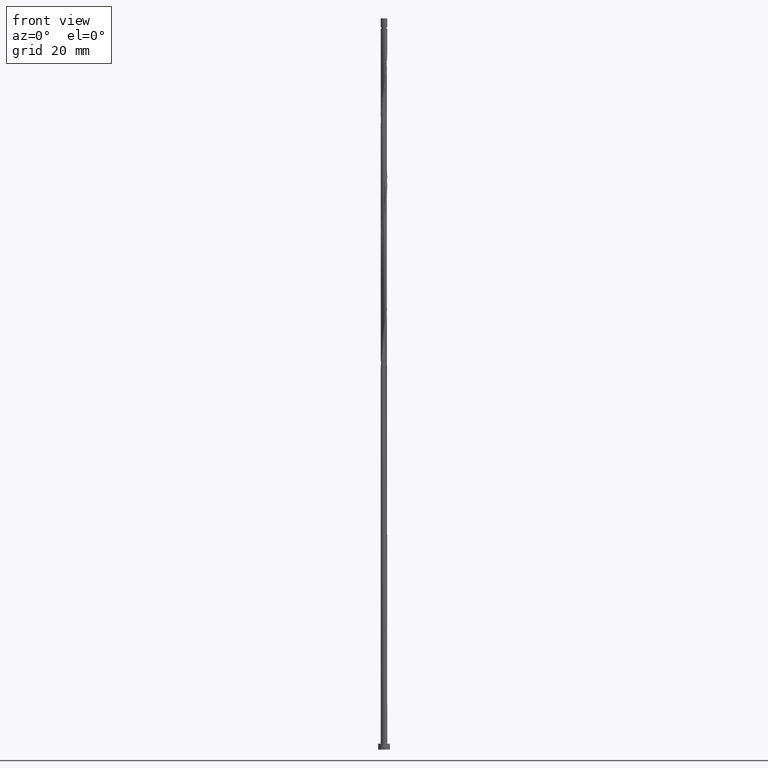
[diagram: clean part render]
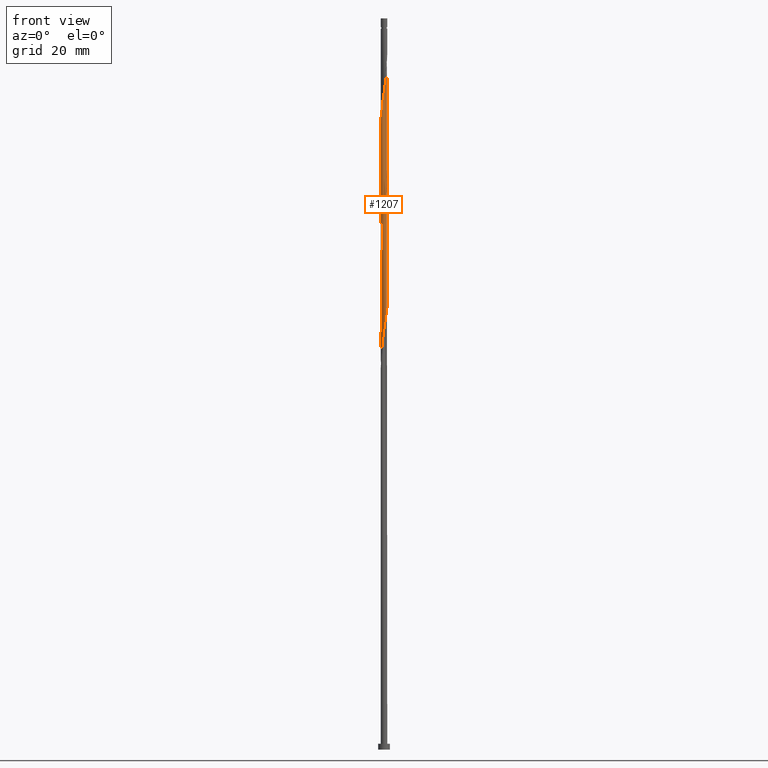
[diagram: same view with one face highlighted and labeled with its STEP entity id]
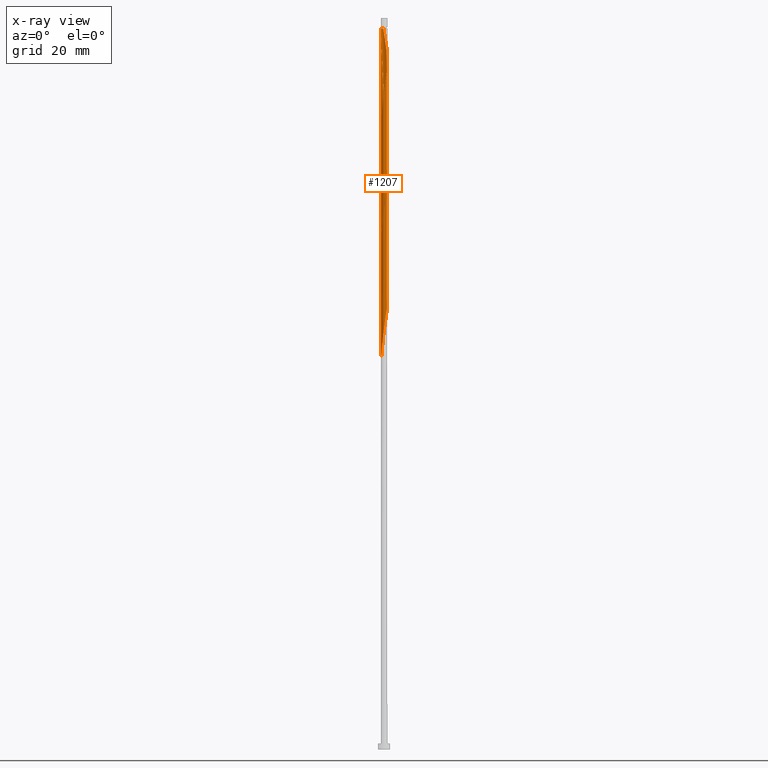
[diagram: x-ray of the same camera — body ghosted, the highlighted face saturated]
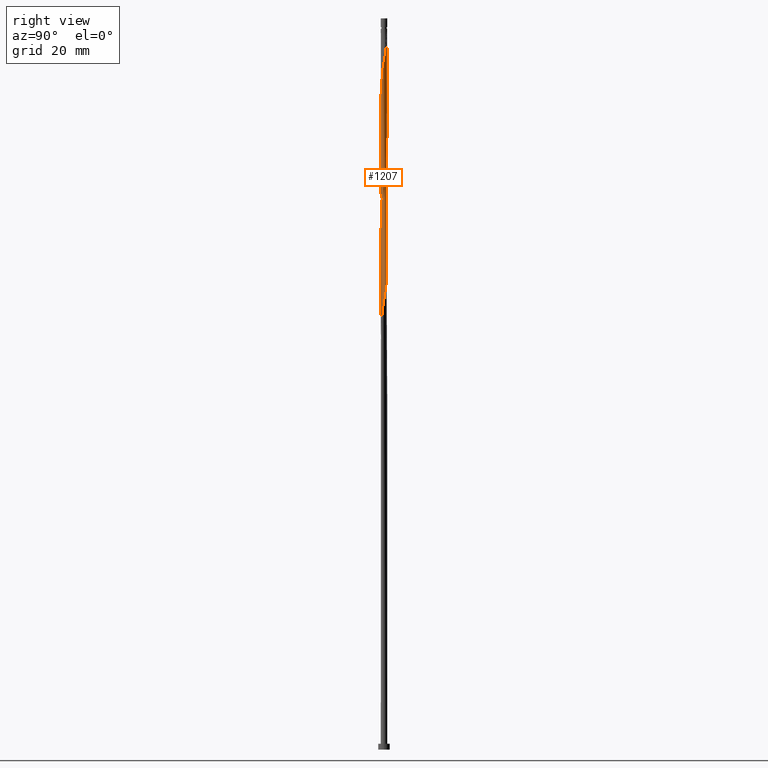
[diagram: same view with one face highlighted and labeled with its STEP entity id]
A machine part, front view. The second image highlights one B-rep face of the part: STEP entity #1207.
The next image is the same camera in x-ray: the body ghosted, the highlighted face saturated — about 0% of this face is hidden behind the body in this view.
A second angle (right view) of the same face is appended — the face is thin or edge-on in the first view.
In plain terms, the highlighted cylindrical surface (bore or boss wall) has radius 1.1 mm, axis along (-0, -0, -1).
Its self-contained STEP definition (entity closure, byte-faithful):
#2 = CARTESIAN_POINT ( 'NONE',  ( 0.9590428054949432513, 0.5550462033200851408, 199.2324364001611059 ) ) ;
#8 = CARTESIAN_POINT ( 'NONE',  ( 1.085917561661207564, -0.2205049656298699867, 194.4247440924687851 ) ) ;
#12 = CARTESIAN_POINT ( 'NONE',  ( -0.8590584812566418593, 0.6998985043366532377, 212.0529492206739519 ) ) ;
#18 = CARTESIAN_POINT ( 'NONE',  ( -1.085917561661207564, 0.2205049656298698479, 173.5914107591354991 ) ) ;
#29 = CARTESIAN_POINT ( 'NONE',  ( 1.001592478565782374, -0.4739745747106116069, 151.1555133232380115 ) ) ;
#32 = EDGE_CURVE ( 'NONE', #744, #1502, #282, .T. ) ;
#34 = CARTESIAN_POINT ( 'NONE',  ( -1.100000000000001865, 0.04375044337044767945, 216.3218283860610995 ) ) ;
#38 = CARTESIAN_POINT ( 'NONE',  ( 0.7628288044120180578, -0.7925226906274263072, 190.4183338360585935 ) ) ;
#48 = CARTESIAN_POINT ( 'NONE',  ( 0.9590428054949432513, 0.5550462033200851408, 157.5657697334944203 ) ) ;
#53 = CARTESIAN_POINT ( 'NONE',  ( -0.7983435136988058511, -0.7684315354842592427, 138.3350005027251939 ) ) ;
#62 = CARTESIAN_POINT ( 'NONE',  ( -0.9590428054949428072, -0.5550462033200855849, 136.7324364001611343 ) ) ;
#98 = CARTESIAN_POINT ( 'NONE',  ( 0.7983435136988061842, -0.7684315354842599088, 229.6811543488791472 ) ) ;
#115 = CARTESIAN_POINT ( 'NONE',  ( -1.100000000000001865, -6.206714491313604290E-16, 213.9301555499103245 ) ) ;
#130 = CARTESIAN_POINT ( 'NONE',  ( -1.099999999999981881, 0.000000000000000000, 246.5080774258021563 ) ) ;
#136 = CIRCLE ( 'NONE', #615, 1.099999999999981881 ) ;
#140 = CARTESIAN_POINT ( 'NONE',  ( 0.4705187664120762392, 0.9942897417021165918, 161.5721799899047255 ) ) ;
#151 = CARTESIAN_POINT ( 'NONE',  ( 1.107133063222617508, 0.04577959055034153124, 154.3606415283662727 ) ) ;
#159 = CARTESIAN_POINT ( 'NONE',  ( 0.6947954562229515796, 0.8527949777126648812, 159.9696158873406659 ) ) ;
#163 = CARTESIAN_POINT ( 'NONE',  ( 1.064006015414472817, 0.3094036033298083188, 197.6298722975969895 ) ) ;
#168 = AXIS2_PLACEMENT_3D ( 'NONE', #243, #929, #1056 ) ;
#170 = CARTESIAN_POINT ( 'NONE',  ( 0.3497901340770557255, 1.051421063463162442, 162.3734620411867411 ) ) ;
#176 = EDGE_CURVE ( 'NONE', #185, #314, #136, .T. ) ;
#180 = CARTESIAN_POINT ( 'NONE',  ( -0.6947954562229511355, -0.8527949777126652142, 180.8029492206740088 ) ) ;
#185 = VERTEX_POINT ( 'NONE', #130 ) ;
#226 = CARTESIAN_POINT ( 'NONE',  ( -1.011524410454707645, -0.4322249033249473404, 135.9311543488791187 ) ) ;
#231 = CARTESIAN_POINT ( 'NONE',  ( 1.085917561661207342, 0.2205049656298695704, 236.0914107591355275 ) ) ;
#238 = CARTESIAN_POINT ( 'NONE',  ( -1.100000000000001865, -0.04375044337044946274, 214.1943264655432984 ) ) ;
#243 = CARTESIAN_POINT ( 'NONE',  ( 0.000000000000000000, 0.000000000000000000, 250.0000000000000000 ) ) ;
#246 = CARTESIAN_POINT ( 'NONE',  ( 0.9303254799112121720, 0.5869365395236321170, 238.4952569129816595 ) ) ;
#253 = VECTOR ( 'NONE', #806, 1000.000000000000000 ) ;
#263 = CARTESIAN_POINT ( 'NONE',  ( 1.107133063222617286, -0.04577959055034197533, 234.4888466565714111 ) ) ;
#272 = CARTESIAN_POINT ( 'NONE',  ( -0.7628288044120180578, 0.7925226906274263072, 211.2516671693919079 ) ) ;
#274 = DIRECTION ( 'NONE',  ( -0.000000000000000000, -0.000000000000000000, -1.000000000000000000 ) ) ;
#282 = LINE ( 'NONE', #1335, #253 ) ;
#285 = CARTESIAN_POINT ( 'NONE',  ( 1.100000000000000089, 1.347111479062088503E-16, 246.5080774258022416 ) ) ;
#287 = CARTESIAN_POINT ( 'NONE',  ( -0.5912473987470958647, -0.9371584199410710747, 181.6042312719560243 ) ) ;
#291 = CARTESIAN_POINT ( 'NONE',  ( -0.4353994555731700578, 1.018953730391247703, 208.8478210155457191 ) ) ;
#295 = CARTESIAN_POINT ( 'NONE',  ( 1.096525312441912536, -0.08736268753976463020, 153.5593594770842003 ) ) ;
#299 = CARTESIAN_POINT ( 'NONE',  ( -0.6665991275673939231, 0.8851468769181994878, 210.4503851181098355 ) ) ;
#302 = CARTESIAN_POINT ( 'NONE',  ( 0.04544580579189956560, -1.099060816668454121, 185.6106415283663011 ) ) ;
#305 = CARTESIAN_POINT ( 'NONE',  ( -0.1788959498336608334, 1.093542696800067882, 207.2452569129816027 ) ) ;
#310 = CARTESIAN_POINT ( 'NONE',  ( 1.043755020113495080, -0.3472397701702413242, 151.9567953745201692 ) ) ;
#314 = VERTEX_POINT ( 'NONE', #1388 ) ;
#331 = CARTESIAN_POINT ( 'NONE',  ( 0.6665991275673935901, -0.8851468769181997098, 147.9503851181098071 ) ) ;
#341 = CARTESIAN_POINT ( 'NONE',  ( -0.6947954562229511355, -0.8527949777126652142, 139.1362825540072947 ) ) ;
#350 = CARTESIAN_POINT ( 'NONE',  ( -1.085569539318544718, -0.1775915969400753414, 134.3285902463150023 ) ) ;
#370 = CARTESIAN_POINT ( 'NONE',  ( -0.8590584812566420814, -0.6998985043366532377, 218.4632056309303891 ) ) ;
#378 = CARTESIAN_POINT ( 'NONE',  ( -1.085917561661207342, -0.2205049656298697092, 215.2580774258021847 ) ) ;
#388 = CARTESIAN_POINT ( 'NONE',  ( 0.9590428054949423631, -0.5550462033200865841, 231.2837184514432352 ) ) ;
#396 = CARTESIAN_POINT ( 'NONE',  ( 0.08800433824986102216, 1.104578936536840139, 205.6426928104175431 ) ) ;
#408 = CARTESIAN_POINT ( 'NONE',  ( 1.096525312441912536, -0.08736268753976463020, 195.2260261437509143 ) ) ;
#419 = CARTESIAN_POINT ( 'NONE',  ( -0.3071477027034154594, 1.056248213595657903, 166.3798722975970463 ) ) ;
#421 = VERTEX_POINT ( 'NONE', #1668 ) ;
#427 = CARTESIAN_POINT ( 'NONE',  ( 1.011524410454707867, 0.4322249033249472294, 156.7644876822124047 ) ) ;
#431 = CARTESIAN_POINT ( 'NONE',  ( -0.3071477027034154594, 1.056248213595657903, 208.0465389642637319 ) ) ;
#436 = CARTESIAN_POINT ( 'NONE',  ( 0.9303254799112121720, -0.5869365395236327831, 192.0208979386226815 ) ) ;
#444 = CARTESIAN_POINT ( 'NONE',  ( -0.8786931595968745512, -0.6617388694021724138, 179.2003851181098639 ) ) ;
#447 =( BOUNDED_CURVE ( )  B_SPLINE_CURVE ( 2, ( #680, #1199, #408, #8, #581, #949, #436, #1598, #38, #1359, #1467, #1083, #966, #1478, #302, #830, #1224, #536, #569, #287, #180, #1189, #444, #1217, #976, #1504, #708, #1330, #796, #18, #1320, #689, #840, #1064, #546, #701, #1074, #1093, #419, #1340, #1620, #1350, #1610, #170, #140, #1206, #159, #938, #1630, #48, #427, #1101, #1637, #151, #295, #1497, #310, #29, #672, #820, #558, #331, #856, #1231, #1125, #1672, #614, #1136, #1392, #1242, #1109, #1374, #341, #53, #866, #62, #226, #1679, #350, #597, #874 ),
 .UNSPECIFIED., .F., .T. ) 
 B_SPLINE_CURVE_WITH_KNOTS ( ( 3, 2, 2, 2, 2, 2, 2, 2, 2, 2, 2, 2, 2, 2, 2, 2, 2, 2, 2, 2, 2, 2, 2, 2, 2, 2, 2, 2, 2, 2, 2, 2, 2, 2, 2, 2, 2, 2, 2, 2, 3 ),
 ( 0.5545271625973833274, 0.5576923076923077094, 0.5673076923076922906, 0.5769230769230768718, 0.5865384615384615641, 0.5961538461538461453, 0.6057692307692307265, 0.6153846153846154188, 0.6250000000000000000, 0.6346153846153845812, 0.6442307692307692735, 0.6538461538461538547, 0.6634615384615384359, 0.6730769230769231282, 0.6826923076923077094, 0.6923076923076922906, 0.7019230769230768718, 0.7115384615384615641, 0.7211538461538461453, 0.7307692307692307265, 0.7403846153846154188, 0.7500000000000000000, 0.7596153846153845812, 0.7692307692307692735, 0.7788461538461538547, 0.7884615384615384359, 0.7980769230769231282, 0.8076923076923077094, 0.8173076923076922906, 0.8269230769230768718, 0.8365384615384615641, 0.8461538461538461453, 0.8557692307692307265, 0.8653846153846154188, 0.8750000000000000000, 0.8846153846153845812, 0.8942307692307692735, 0.9038461538461538547, 0.9134615384615384359, 0.9230769230769231282, 0.9295271625973834384 ),
 .UNSPECIFIED. ) 
 CURVE ( )  GEOMETRIC_REPRESENTATION_ITEM ( )  RATIONAL_B_SPLINE_CURVE ( ( 0.9061636035683380275, 0.9069090390691266768, 0.9090909090909833346, 0.9024626128164864314, 0.9090909090909833346, 0.9024626128164864314, 0.9090909090909833346, 0.9024626128164864314, 0.9090909090909833346, 0.9024626128164864314, 0.9090909090909833346, 0.9024626128164864314, 0.9090909090909833346, 0.9024626128164864314, 0.9090909090909833346, 0.9024626128164864314, 0.9090909090909833346, 0.9024626128164864314, 0.9090909090909833346, 0.9024626128164864314, 0.9090909090909833346, 0.9024626128164864314, 0.9090909090909833346, 0.9024626128164864314, 0.9090909090909833346, 0.9024626128164864314, 0.9090909090909833346, 0.9024626128164864314, 0.9090909090909833346, 0.9024626128164864314, 0.9090909090909833346, 0.9024626128164864314, 0.9090909090909833346, 0.9024626128164864314, 0.9090909090909833346, 0.9024626128164864314, 0.9090909090909833346, 0.9024626128164864314, 0.9090909090909833346, 0.9024626128164864314, 0.9090909090909833346, 0.9024626128164864314, 0.9090909090909833346, 0.9024626128164864314, 0.9090909090909833346, 0.9024626128164864314, 0.9090909090909833346, 0.9024626128164864314, 0.9090909090909833346, 0.9024626128164864314, 0.9090909090909833346, 0.9024626128164864314, 0.9090909090909833346, 0.9024626128164864314, 0.9090909090909833346, 0.9024626128164864314, 0.9090909090909833346, 0.9024626128164864314, 0.9090909090909833346, 0.9024626128164864314, 0.9090909090909833346, 0.9024626128164864314, 0.9090909090909833346, 0.9024626128164864314, 0.9090909090909833346, 0.9024626128164864314, 0.9090909090909833346, 0.9024626128164864314, 0.9090909090909833346, 0.9024626128164864314, 0.9090909090909833346, 0.9024626128164864314, 0.9090909090909833346, 0.9024626128164864314, 0.9090909090909833346, 0.9024626128164864314, 0.9090909090909833346, 0.9024626128164864314, 0.9090909090909833346, 0.9046444828383430892, 0.9061636035683381385 ) ) 
 REPRESENTATION_ITEM ( '' )  );
#465 = ORIENTED_EDGE ( 'NONE', *, *, #486, .T. ) ;
#474 = EDGE_CURVE ( 'NONE', #421, #314, #1232, .T. ) ;
#486 = EDGE_CURVE ( 'NONE', #421, #1525, #540, .T. ) ;
#490 = CARTESIAN_POINT ( 'NONE',  ( -1.043755020113495080, -0.3472397701702404360, 216.0593594770842003 ) ) ;
#504 = CARTESIAN_POINT ( 'NONE',  ( -1.096525312441912536, -0.08736268753976370038, 214.4567953745201123 ) ) ;
#512 = CARTESIAN_POINT ( 'NONE',  ( -0.04544580579190031500, -1.099060816668453677, 224.0721799899047255 ) ) ;
#520 = CARTESIAN_POINT ( 'NONE',  ( -1.001592478565782374, 0.4739745747106117735, 213.6555133232380399 ) ) ;
#530 = CARTESIAN_POINT ( 'NONE',  ( 0.6947954562229515796, 0.8527949777126648812, 201.6362825540072947 ) ) ;
#536 = CARTESIAN_POINT ( 'NONE',  ( -0.3497901340770555589, -1.051421063463162442, 183.2067953745201123 ) ) ;
#540 = LINE ( 'NONE', #551, #1692 ) ;
#546 = CARTESIAN_POINT ( 'NONE',  ( -0.7628288044120180578, 0.7925226906274263072, 169.5850005027252507 ) ) ;
#551 = CARTESIAN_POINT ( 'NONE',  ( -1.100000000000000089, 0.000000000000000000, 250.0000000000000000 ) ) ;
#558 = CARTESIAN_POINT ( 'NONE',  ( 0.7628288044120180578, -0.7925226906274263072, 148.7516671693919363 ) ) ;
#562 = CARTESIAN_POINT ( 'NONE',  ( -0.08800433824986045317, 1.104578936536840361, 245.7067953745201407 ) ) ;
#569 = CARTESIAN_POINT ( 'NONE',  ( -0.4705187664120757951, -0.9942897417021170359, 182.4055133232380967 ) ) ;
#581 = CARTESIAN_POINT ( 'NONE',  ( 1.043755020113495080, -0.3472397701702413242, 193.6234620411867979 ) ) ;
#594 = VERTEX_POINT ( 'NONE', #1492 ) ;
#597 = CARTESIAN_POINT ( 'NONE',  ( -1.100000000000002309, -0.08938208239074729722, 133.7923667057090142 ) ) ;
#603 = CARTESIAN_POINT ( 'NONE',  ( -1.100000000000002087, -1.200214067296184068E-15, 133.2526659683607306 ) ) ;
#614 = CARTESIAN_POINT ( 'NONE',  ( 0.04544580579189956560, -1.099060816668454121, 143.9439748616996440 ) ) ;
#615 = AXIS2_PLACEMENT_3D ( 'NONE', #1451, #274, #1473 ) ;
#627 = EDGE_CURVE ( 'NONE', #594, #1502, #747, .T. ) ;
#632 = CARTESIAN_POINT ( 'NONE',  ( 0.8786931595968742181, -0.6617388694021730799, 230.4824364001611343 ) ) ;
#648 = CARTESIAN_POINT ( 'NONE',  ( -0.4353994555731702243, -1.018953730391247703, 221.6683338360586504 ) ) ;
#656 = CARTESIAN_POINT ( 'NONE',  ( 1.100000000000001865, 0.08938208239074856010, 196.2923667057090427 ) ) ;
#672 = CARTESIAN_POINT ( 'NONE',  ( 0.9303254799112121720, -0.5869365395236327831, 150.3542312719560528 ) ) ;
#676 = CARTESIAN_POINT ( 'NONE',  ( 0.8786931595968748843, 0.6617388694021724138, 200.0337184514431783 ) ) ;
#680 = CARTESIAN_POINT ( 'NONE',  ( 1.100000000000001865, 7.328409881310033418E-16, 195.7526659683607591 ) ) ;
#685 = CARTESIAN_POINT ( 'NONE',  ( -1.100000000000002309, -6.879731725311458414E-16, 216.5859993016940734 ) ) ;
#689 = CARTESIAN_POINT ( 'NONE',  ( -1.001592478565782374, 0.4739745747106117735, 171.9888466565714111 ) ) ;
#695 = CARTESIAN_POINT ( 'NONE',  ( 0.4353994555731702243, 1.018953730391247703, 242.5016671693919363 ) ) ;
#701 = CARTESIAN_POINT ( 'NONE',  ( -0.6665991275673939231, 0.8851468769181994878, 168.7837184514431783 ) ) ;
#708 = CARTESIAN_POINT ( 'NONE',  ( -1.085569539318544718, -0.1775915969400753414, 175.9952569129816595 ) ) ;
#744 = VERTEX_POINT ( 'NONE', #285 ) ;
#747 =( BOUNDED_CURVE ( )  B_SPLINE_CURVE ( 2, ( #685, #34, #954, #1060, #1483, #520, #1068, #12, #272, #299, #1212, #291, #431, #305, #1185, #396, #824, #942, #1603, #1344, #530, #932, #676, #2, #1585, #163, #835, #656, #1592 ),
 .UNSPECIFIED., .F., .T. ) 
 B_SPLINE_CURVE_WITH_KNOTS ( ( 3, 2, 2, 2, 2, 2, 2, 2, 2, 2, 2, 2, 2, 2, 3 ),
 ( 0.4295271625973833829, 0.4326923076923077094, 0.4423076923076922906, 0.4519230769230769273, 0.4615384615384615641, 0.4711538461538461453, 0.4807692307692307820, 0.4903846153846153633, 0.5000000000000000000, 0.5096153846153845812, 0.5192307692307692735, 0.5288461538461538547, 0.5384615384615384359, 0.5480769230769231282, 0.5545271625973833274 ),
 .UNSPECIFIED. ) 
 CURVE ( )  GEOMETRIC_REPRESENTATION_ITEM ( )  RATIONAL_B_SPLINE_CURVE ( ( 0.9061636035683380275, 0.9069090390691266768, 0.9090909090909833346, 0.9024626128164864314, 0.9090909090909833346, 0.9024626128164864314, 0.9090909090909833346, 0.9024626128164864314, 0.9090909090909833346, 0.9024626128164864314, 0.9090909090909833346, 0.9024626128164864314, 0.9090909090909833346, 0.9024626128164864314, 0.9090909090909833346, 0.9024626128164864314, 0.9090909090909833346, 0.9024626128164864314, 0.9090909090909833346, 0.9024626128164864314, 0.9090909090909833346, 0.9024626128164864314, 0.9090909090909833346, 0.9024626128164864314, 0.9090909090909833346, 0.9024626128164864314, 0.9090909090909833346, 0.9046444828383430892, 0.9061636035683380275 ) ) 
 REPRESENTATION_ITEM ( '' )  );
#760 = CARTESIAN_POINT ( 'NONE',  ( -1.001592478565782596, -0.4739745747106117180, 216.8606415283663011 ) ) ;
#768 = CARTESIAN_POINT ( 'NONE',  ( 0.8590584812566425255, 0.6998985043366526826, 239.2965389642637319 ) ) ;
#796 = CARTESIAN_POINT ( 'NONE',  ( -1.096525312441912536, 0.08736268753976401957, 174.3926928104175431 ) ) ;
#799 = VECTOR ( 'NONE', #1488, 1000.000000000000000 ) ;
#806 = DIRECTION ( 'NONE',  ( -0.000000000000000000, -0.000000000000000000, -1.000000000000000000 ) ) ;
#815 = DIRECTION ( 'NONE',  ( -0.000000000000000000, -0.000000000000000000, -1.000000000000000000 ) ) ;
#820 = CARTESIAN_POINT ( 'NONE',  ( 0.8590584812566413042, -0.6998985043366535708, 149.5529492206739803 ) ) ;
#824 = CARTESIAN_POINT ( 'NONE',  ( 0.2188972361634583808, 1.078000000000001624, 204.8414107591354991 ) ) ;
#826 = ORIENTED_EDGE ( 'NONE', *, *, #627, .F. ) ;
#830 = CARTESIAN_POINT ( 'NONE',  ( -0.08800433824986128584, -1.104578936536840139, 184.8093594770842003 ) ) ;
#835 = CARTESIAN_POINT ( 'NONE',  ( 1.085569539318544718, 0.1775915969400754524, 196.8285902463150023 ) ) ;
#840 = CARTESIAN_POINT ( 'NONE',  ( -0.9303254799112121720, 0.5869365395236327831, 171.1875646052893387 ) ) ;
#856 = CARTESIAN_POINT ( 'NONE',  ( 0.5509992915702818239, -0.9520503036547237619, 147.1491030668278484 ) ) ;
#866 = CARTESIAN_POINT ( 'NONE',  ( -0.8786931595968745512, -0.6617388694021724138, 137.5337184514432067 ) ) ;
#874 = CARTESIAN_POINT ( 'NONE',  ( -1.100000000000002087, -1.200214067296184068E-15, 133.2526659683607306 ) ) ;
#886 = CARTESIAN_POINT ( 'NONE',  ( -0.6665991275673944783, -0.8851468769181991547, 220.0657697334944487 ) ) ;
#899 = CARTESIAN_POINT ( 'NONE',  ( 1.085569539318544718, -0.1775915969400758132, 233.6875646052893387 ) ) ;
#906 = CARTESIAN_POINT ( 'NONE',  ( -0.9303254799112121720, -0.5869365395236321170, 217.6619235796483167 ) ) ;
#916 = CARTESIAN_POINT ( 'NONE',  ( 1.011524410454707423, -0.4322249033249475070, 232.0850005027252223 ) ) ;
#929 = DIRECTION ( 'NONE',  ( -0.000000000000000000, -0.000000000000000000, -1.000000000000000000 ) ) ;
#932 = CARTESIAN_POINT ( 'NONE',  ( 0.7983435136988060732, 0.7684315354842592427, 200.8350005027252223 ) ) ;
#938 = CARTESIAN_POINT ( 'NONE',  ( 0.7983435136988060732, 0.7684315354842592427, 159.1683338360585651 ) ) ;
#942 = CARTESIAN_POINT ( 'NONE',  ( 0.3497901340770557255, 1.051421063463162442, 204.0401287078534267 ) ) ;
#949 = CARTESIAN_POINT ( 'NONE',  ( 1.001592478565782374, -0.4739745747106116069, 192.8221799899046971 ) ) ;
#954 = CARTESIAN_POINT ( 'NONE',  ( -1.096525312441912536, 0.08736268753976401957, 216.0593594770842287 ) ) ;
#957 = CARTESIAN_POINT ( 'NONE',  ( -1.100000000000000089, 0.000000000000000000, 250.0000000000000000 ) ) ;
#966 = CARTESIAN_POINT ( 'NONE',  ( 0.3071477027034154594, -1.056248213595657903, 187.2132056309303891 ) ) ;
#976 = CARTESIAN_POINT ( 'NONE',  ( -1.011524410454707645, -0.4322249033249473404, 177.5978210155458044 ) ) ;
#1013 = CARTESIAN_POINT ( 'NONE',  ( -0.1788959498336612219, -1.093542696800067882, 223.2708979386226815 ) ) ;
#1041 = CARTESIAN_POINT ( 'NONE',  ( 0.3497901340770548373, -1.051421063463162664, 226.4760261437509428 ) ) ;
#1056 = DIRECTION ( 'NONE',  ( -1.000000000000000000, 0.000000000000000000, 0.000000000000000000 ) ) ;
#1058 = ORIENTED_EDGE ( 'NONE', *, *, #1260, .F. ) ;
#1060 = CARTESIAN_POINT ( 'NONE',  ( -1.085917561661207564, 0.2205049656298698479, 215.2580774258021563 ) ) ;
#1064 = CARTESIAN_POINT ( 'NONE',  ( -0.8590584812566418593, 0.6998985043366532377, 170.3862825540072663 ) ) ;
#1068 = CARTESIAN_POINT ( 'NONE',  ( -0.9303254799112121720, 0.5869365395236327831, 212.8542312719560243 ) ) ;
#1074 = CARTESIAN_POINT ( 'NONE',  ( -0.5509992915702819349, 0.9520503036547237619, 167.9824364001611343 ) ) ;
#1083 = CARTESIAN_POINT ( 'NONE',  ( 0.4353994555731698912, -1.018953730391247925, 188.0144876822124047 ) ) ;
#1088 = CARTESIAN_POINT ( 'NONE',  ( 0.1788959498336613052, 1.093542696800067882, 244.1042312719560528 ) ) ;
#1093 = CARTESIAN_POINT ( 'NONE',  ( -0.4353994555731700578, 1.018953730391247703, 167.1811543488790335 ) ) ;
#1101 = CARTESIAN_POINT ( 'NONE',  ( 1.064006015414472817, 0.3094036033298083188, 155.9632056309303607 ) ) ;
#1109 = CARTESIAN_POINT ( 'NONE',  ( -0.4705187664120757951, -0.9942897417021170359, 140.7388466565713827 ) ) ;
#1125 = CARTESIAN_POINT ( 'NONE',  ( 0.3071477027034154594, -1.056248213595657903, 145.5465389642637035 ) ) ;
#1134 = ORIENTED_EDGE ( 'NONE', *, *, #32, .T. ) ;
#1136 = CARTESIAN_POINT ( 'NONE',  ( -0.08800433824986128584, -1.104578936536840139, 143.1426928104174863 ) ) ;
#1152 = CARTESIAN_POINT ( 'NONE',  ( 1.043755020113495080, 0.3472397701702399919, 236.8926928104175715 ) ) ;
#1166 = CARTESIAN_POINT ( 'NONE',  ( 0.08800433824986056419, -1.104578936536840361, 224.8734620411867979 ) ) ;
#1185 = CARTESIAN_POINT ( 'NONE',  ( -0.04544580579189993336, 1.099060816668453899, 206.4439748616996155 ) ) ;
#1189 = CARTESIAN_POINT ( 'NONE',  ( -0.7983435136988058511, -0.7684315354842592427, 180.0016671693918795 ) ) ;
#1193 = CARTESIAN_POINT ( 'NONE',  ( 0.7628288044120183908, 0.7925226906274260852, 240.0978210155457475 ) ) ;
#1199 = CARTESIAN_POINT ( 'NONE',  ( 1.100000000000001865, -0.04375044337044720760, 195.4884950527277852 ) ) ;
#1206 = CARTESIAN_POINT ( 'NONE',  ( 0.5912473987470960868, 0.9371584199410710747, 160.7708979386226815 ) ) ;
#1207 = ADVANCED_FACE ( 'NONE', ( #1418 ), #1718, .T. ) ;
#1212 = CARTESIAN_POINT ( 'NONE',  ( -0.5509992915702819349, 0.9520503036547237619, 209.6491030668278199 ) ) ;
#1217 = CARTESIAN_POINT ( 'NONE',  ( -0.9590428054949428072, -0.5550462033200855849, 178.3991030668277631 ) ) ;
#1224 = CARTESIAN_POINT ( 'NONE',  ( -0.2188972361634582142, -1.078000000000001624, 184.0080774258021563 ) ) ;
#1231 = CARTESIAN_POINT ( 'NONE',  ( 0.4353994555731698912, -1.018953730391247925, 146.3478210155457759 ) ) ;
#1232 =( BOUNDED_CURVE ( )  B_SPLINE_CURVE ( 2, ( #115, #238, #504, #378, #490, #760, #906, #370, #1296, #886, #1305, #648, #1676, #1013, #512, #1166, #1705, #1041, #1279, #1559, #1574, #98, #632, #388, #916, #1438, #899, #263, #1406, #231, #1152, #1420, #246, #768, #1193, #1449, #1334, #695, #1471, #1088, #1624, #562, #1714 ),
 .UNSPECIFIED., .F., .T. ) 
 B_SPLINE_CURVE_WITH_KNOTS ( ( 3, 2, 2, 2, 2, 2, 2, 2, 2, 2, 2, 2, 2, 2, 2, 2, 2, 2, 2, 2, 2, 3 ),
 ( 0.5545271625973835494, 0.5576923076923077094, 0.5673076923076922906, 0.5769230769230768718, 0.5865384615384615641, 0.5961538461538461453, 0.6057692307692308376, 0.6153846153846154188, 0.6250000000000000000, 0.6346153846153845812, 0.6442307692307691624, 0.6538461538461538547, 0.6634615384615384359, 0.6730769230769231282, 0.6826923076923077094, 0.6923076923076922906, 0.7019230769230768718, 0.7115384615384615641, 0.7211538461538461453, 0.7307692307692308376, 0.7403846153846154188, 0.7500000000000000000 ),
 .UNSPECIFIED. ) 
 CURVE ( )  GEOMETRIC_REPRESENTATION_ITEM ( )  RATIONAL_B_SPLINE_CURVE ( ( 0.9061636035683369172, 0.9069090390691256776, 0.9090909090909822243, 0.9024626128164853212, 0.9090909090909822243, 0.9024626128164853212, 0.9090909090909822243, 0.9024626128164853212, 0.9090909090909822243, 0.9024626128164853212, 0.9090909090909822243, 0.9024626128164853212, 0.9090909090909822243, 0.9024626128164853212, 0.9090909090909822243, 0.9024626128164853212, 0.9090909090909822243, 0.9024626128164853212, 0.9090909090909822243, 0.9024626128164853212, 0.9090909090909822243, 0.9024626128164853212, 0.9090909090909822243, 0.9024626128164853212, 0.9090909090909822243, 0.9024626128164853212, 0.9090909090909822243, 0.9024626128164853212, 0.9090909090909822243, 0.9024626128164853212, 0.9090909090909822243, 0.9024626128164853212, 0.9090909090909822243, 0.9024626128164853212, 0.9090909090909822243, 0.9024626128164853212, 0.9090909090909822243, 0.9024626128164853212, 0.9090909090909822243, 0.9024626128164853212, 0.9090909090909822243, 0.9024626128164853212, 0.9090909090909822243 ) ) 
 REPRESENTATION_ITEM ( '' )  );
#1242 = CARTESIAN_POINT ( 'NONE',  ( -0.3497901340770555589, -1.051421063463162442, 141.5401287078533983 ) ) ;
#1260 = EDGE_CURVE ( 'NONE', #185, #594, #1454, .T. ) ;
#1279 = CARTESIAN_POINT ( 'NONE',  ( 0.4705187664120750179, -0.9942897417021172579, 227.2773081950329583 ) ) ;
#1280 = EDGE_CURVE ( 'NONE', #1502, #1525, #447, .T. ) ;
#1296 = CARTESIAN_POINT ( 'NONE',  ( -0.7628288044120182798, -0.7925226906274261962, 219.2644876822123763 ) ) ;
#1303 = ORIENTED_EDGE ( 'NONE', *, *, #474, .F. ) ;
#1305 = CARTESIAN_POINT ( 'NONE',  ( -0.5509992915702822680, -0.9520503036547229847, 220.8670517847765211 ) ) ;
#1320 = CARTESIAN_POINT ( 'NONE',  ( -1.043755020113495080, 0.3472397701702408246, 172.7901287078534551 ) ) ;
#1330 = CARTESIAN_POINT ( 'NONE',  ( -1.107133063222617508, -0.04577959055034199615, 175.1939748616995871 ) ) ;
#1334 = CARTESIAN_POINT ( 'NONE',  ( 0.5509992915702824900, 0.9520503036547229847, 241.7003851181098639 ) ) ;
#1335 = CARTESIAN_POINT ( 'NONE',  ( 1.100000000000000089, 1.347111479062088503E-16, 250.0000000000000000 ) ) ;
#1340 = CARTESIAN_POINT ( 'NONE',  ( -0.1788959498336608334, 1.093542696800067882, 165.5785902463150023 ) ) ;
#1344 = CARTESIAN_POINT ( 'NONE',  ( 0.5912473987470960868, 0.9371584199410710747, 202.4375646052892819 ) ) ;
#1350 = CARTESIAN_POINT ( 'NONE',  ( 0.08800433824986102216, 1.104578936536840139, 163.9760261437508575 ) ) ;
#1359 = CARTESIAN_POINT ( 'NONE',  ( 0.6665991275673935901, -0.8851468769181997098, 189.6170517847764643 ) ) ;
#1374 = CARTESIAN_POINT ( 'NONE',  ( -0.5912473987470958647, -0.9371584199410710747, 139.9375646052893103 ) ) ;
#1388 = CARTESIAN_POINT ( 'NONE',  ( -0.2188972361634864972, 1.078000000000286951, 246.5080774258022416 ) ) ;
#1392 = CARTESIAN_POINT ( 'NONE',  ( -0.2188972361634582142, -1.078000000000001624, 142.3414107591355275 ) ) ;
#1406 = CARTESIAN_POINT ( 'NONE',  ( 1.096525312441912536, 0.08736268753976325629, 235.2901287078534551 ) ) ;
#1418 = FACE_OUTER_BOUND ( 'NONE', #1516, .T. ) ;
#1420 = CARTESIAN_POINT ( 'NONE',  ( 1.001592478565782596, 0.4739745747106113849, 237.6939748616996440 ) ) ;
#1438 = CARTESIAN_POINT ( 'NONE',  ( 1.064006015414472373, -0.3094036033298096511, 232.8862825540073516 ) ) ;
#1449 = CARTESIAN_POINT ( 'NONE',  ( 0.6665991275673949223, 0.8851468769181988216, 240.8991030668278484 ) ) ;
#1451 = CARTESIAN_POINT ( 'NONE',  ( 0.000000000000000000, 0.000000000000000000, 246.5080774258021563 ) ) ;
#1454 = LINE ( 'NONE', #957, #799 ) ;
#1467 = CARTESIAN_POINT ( 'NONE',  ( 0.5509992915702818239, -0.9520503036547237619, 188.8157697334945055 ) ) ;
#1471 = CARTESIAN_POINT ( 'NONE',  ( 0.3071477027034161811, 1.056248213595657237, 243.3029492206740088 ) ) ;
#1473 = DIRECTION ( 'NONE',  ( -1.000000000000000000, 0.000000000000000000, 0.000000000000000000 ) ) ;
#1478 = CARTESIAN_POINT ( 'NONE',  ( 0.1788959498336603893, -1.093542696800067882, 186.4119235796483167 ) ) ;
#1483 = CARTESIAN_POINT ( 'NONE',  ( -1.043755020113495080, 0.3472397701702408246, 214.4567953745201123 ) ) ;
#1488 = DIRECTION ( 'NONE',  ( -0.000000000000000000, -0.000000000000000000, -1.000000000000000000 ) ) ;
#1492 = CARTESIAN_POINT ( 'NONE',  ( -1.100000000000002309, -6.879731725311458414E-16, 216.5859993016940734 ) ) ;
#1497 = CARTESIAN_POINT ( 'NONE',  ( 1.085917561661207564, -0.2205049656298699867, 152.7580774258021279 ) ) ;
#1502 = VERTEX_POINT ( 'NONE', #1652 ) ;
#1504 = CARTESIAN_POINT ( 'NONE',  ( -1.064006015414472595, -0.3094036033298087629, 176.7965389642637319 ) ) ;
#1516 = EDGE_LOOP ( 'NONE', ( #1058, #1530, #1303, #465, #1519, #1712, #1134, #826 ) ) ;
#1519 = ORIENTED_EDGE ( 'NONE', *, *, #1280, .F. ) ;
#1525 = VERTEX_POINT ( 'NONE', #603 ) ;
#1530 = ORIENTED_EDGE ( 'NONE', *, *, #176, .T. ) ;
#1559 = CARTESIAN_POINT ( 'NONE',  ( 0.5912473987470950876, -0.9371584199410719629, 228.0785902463150308 ) ) ;
#1574 = CARTESIAN_POINT ( 'NONE',  ( 0.6947954562229506914, -0.8527949777126653252, 228.8798722975970463 ) ) ;
#1585 = CARTESIAN_POINT ( 'NONE',  ( 1.011524410454707867, 0.4322249033249472294, 198.4311543488790903 ) ) ;
#1592 = CARTESIAN_POINT ( 'NONE',  ( 1.100000000000001865, 7.328409881310033418E-16, 195.7526659683607591 ) ) ;
#1598 = CARTESIAN_POINT ( 'NONE',  ( 0.8590584812566413042, -0.6998985043366535708, 191.2196158873406375 ) ) ;
#1603 = CARTESIAN_POINT ( 'NONE',  ( 0.4705187664120762392, 0.9942897417021165918, 203.2388466565714111 ) ) ;
#1610 = CARTESIAN_POINT ( 'NONE',  ( 0.2188972361634583808, 1.078000000000001624, 163.1747440924688703 ) ) ;
#1620 = CARTESIAN_POINT ( 'NONE',  ( -0.04544580579189993336, 1.099060816668453899, 164.7773081950330152 ) ) ;
#1624 = CARTESIAN_POINT ( 'NONE',  ( 0.04544580579190091868, 1.099060816668453677, 244.9055133232380683 ) ) ;
#1630 = CARTESIAN_POINT ( 'NONE',  ( 0.8786931595968748843, 0.6617388694021724138, 158.3670517847765211 ) ) ;
#1637 = CARTESIAN_POINT ( 'NONE',  ( 1.085569539318544718, 0.1775915969400754524, 155.1619235796483451 ) ) ;
#1652 = CARTESIAN_POINT ( 'NONE',  ( 1.100000000000002087, 7.328409881310033418E-16, 195.7526659683607591 ) ) ;
#1668 = CARTESIAN_POINT ( 'NONE',  ( -1.100000000000001865, -6.206714491313605276E-16, 213.9301555499103245 ) ) ;
#1672 = CARTESIAN_POINT ( 'NONE',  ( 0.1788959498336603893, -1.093542696800067882, 144.7452569129816595 ) ) ;
#1676 = CARTESIAN_POINT ( 'NONE',  ( -0.3071477027034157370, -1.056248213595657459, 222.4696158873406091 ) ) ;
#1679 = CARTESIAN_POINT ( 'NONE',  ( -1.064006015414472595, -0.3094036033298087629, 135.1298722975970179 ) ) ;
#1692 = VECTOR ( 'NONE', #815, 1000.000000000000000 ) ;
#1705 = CARTESIAN_POINT ( 'NONE',  ( 0.2188972361634579644, -1.078000000000001180, 225.6747440924688135 ) ) ;
#1712 = ORIENTED_EDGE ( 'NONE', *, *, #32, .F. ) ;
#1714 = CARTESIAN_POINT ( 'NONE',  ( -0.2188972361634864972, 1.078000000000286951, 246.5080774258022416 ) ) ;
#1718 = CYLINDRICAL_SURFACE ( 'NONE', #168, 1.100000000000000089 ) ;